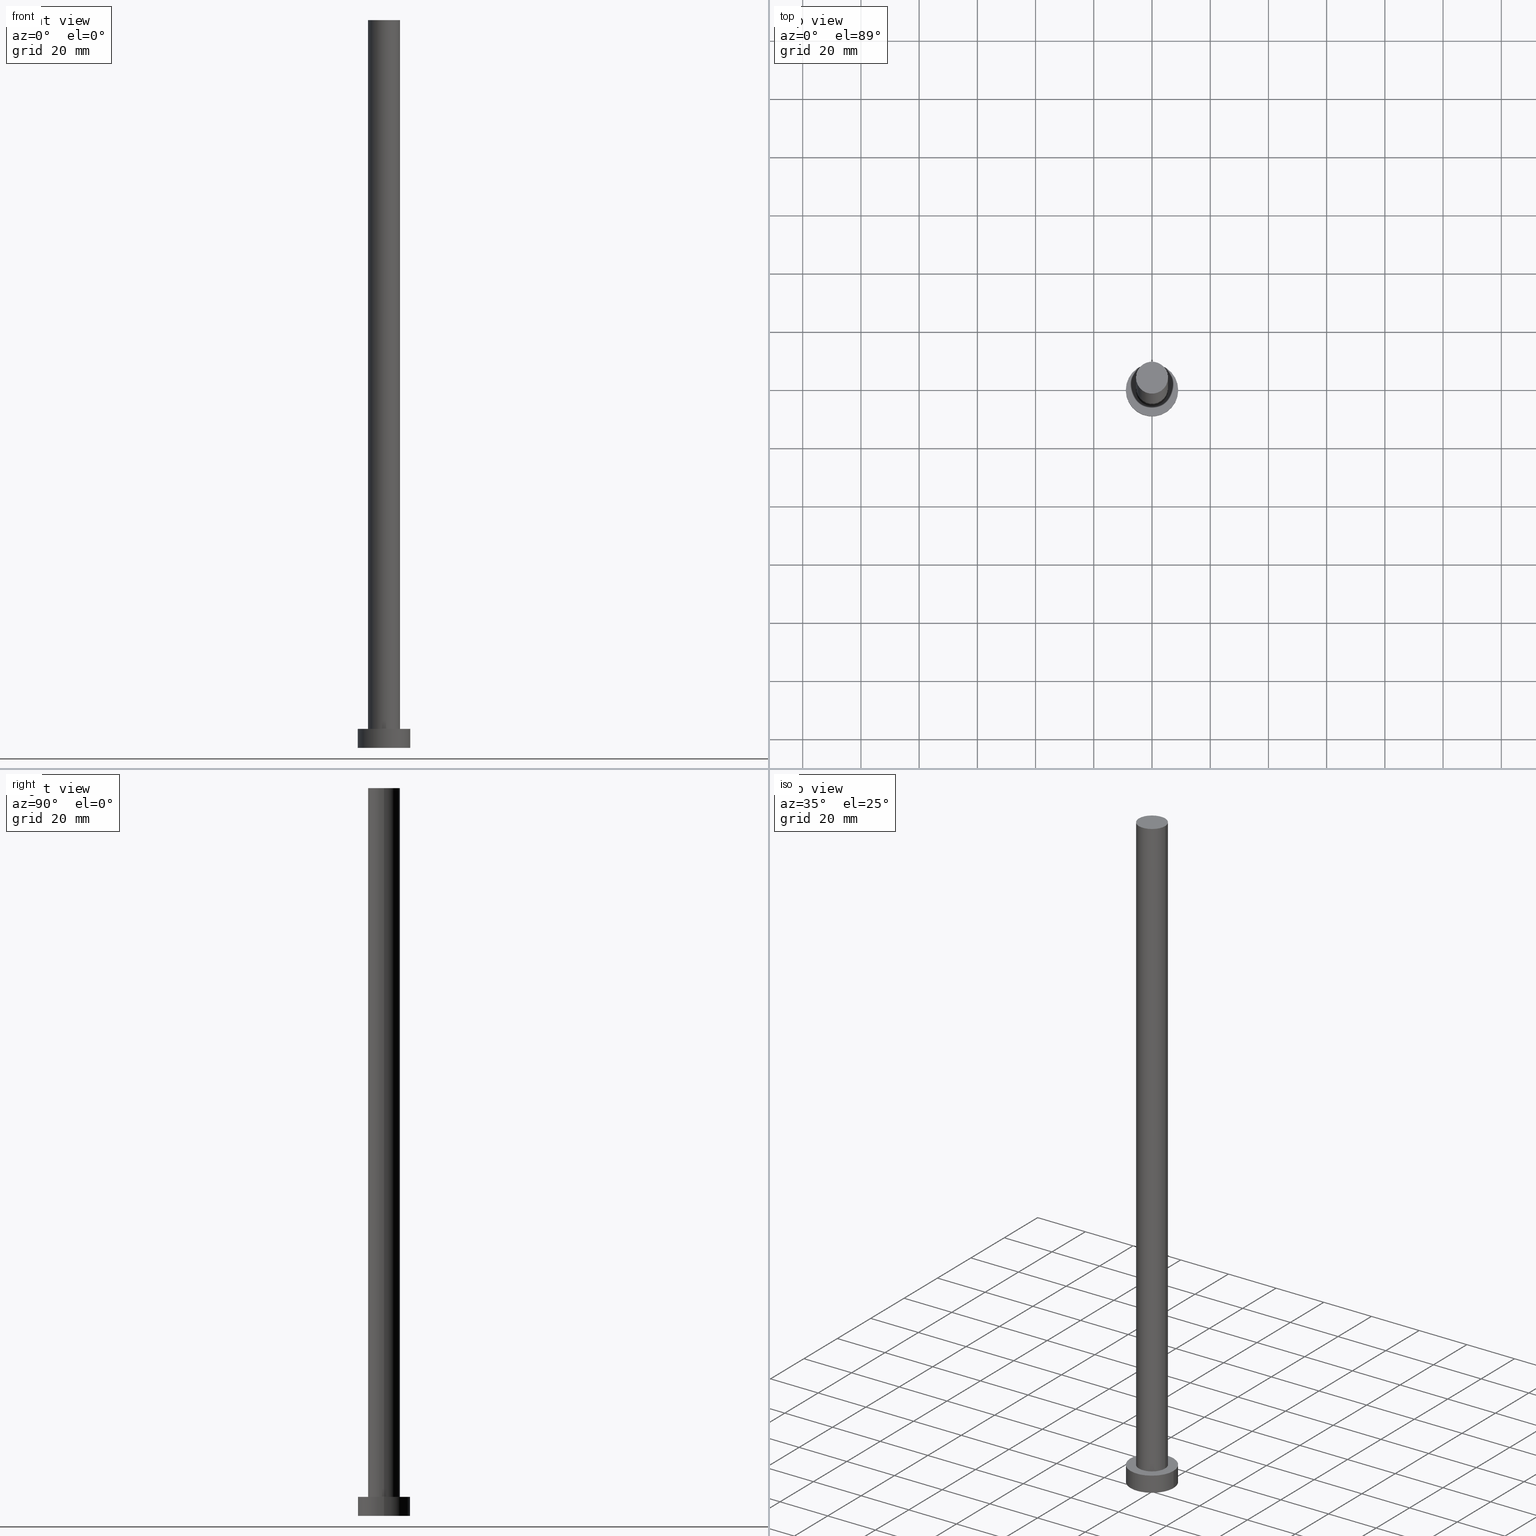
[diagram: canonical four-view strip — front | top / right | iso, engineering-drawing reading convention]
A machine part, canonical four-view strip (front | top / right | iso — engineering-drawing reading convention). The complete STEP part file that produces these views, byte-faithful:
ISO-10303-21;
HEADER;
FILE_DESCRIPTION (( 'STEP AP203' ),
    '1' );
FILE_NAME ('5524.STEP',
    '2023-02-13T12:19:57',
    ( '' ),
    ( '' ),
    'SwSTEP 2.0',
    'SolidWorks 2019',
    '' );
FILE_SCHEMA (( 'CONFIG_CONTROL_DESIGN' ));
ENDSEC;

DATA;
#1 = CALENDAR_DATE ( 2023, 13, 2 ) ;
#2 = ORGANIZATION ( 'NEUR�EN�', 'NEUR�EN�', '' ) ;
#3 = CARTESIAN_POINT ( 'NONE',  ( 0.000000000000000000, 0.000000000000000000, 0.000000000000000000 ) ) ;
#4 = CC_DESIGN_DATE_AND_TIME_ASSIGNMENT ( #159, #237, ( #126 ) ) ;
#5 = DATE_TIME_ROLE ( 'creation_date' ) ;
#6 = DIRECTION ( 'NONE',  ( 1.000000000000000000, 0.000000000000000000, -0.000000000000000000 ) ) ;
#7 = CARTESIAN_POINT ( 'NONE',  ( -9.000000000000000000, 0.000000000000000000, 6.500000000000000000 ) ) ;
#8 = CIRCLE ( 'NONE', #146, 5.500000000000000000 ) ;
#9 = ADVANCED_FACE ( 'NONE', ( #107 ), #130, .T. ) ;
#10 = CALENDAR_DATE ( 2023, 13, 2 ) ;
#11 = VECTOR ( 'NONE', #209, 1000.000000000000000 ) ;
#12 = EDGE_CURVE ( 'NONE', #180, #161, #230, .T. ) ;
#13 = VERTEX_POINT ( 'NONE', #87 ) ;
#14 = CC_DESIGN_SECURITY_CLASSIFICATION ( #126, ( #253 ) ) ;
#15 = PLANE ( 'NONE',  #167 ) ;
#16 = CARTESIAN_POINT ( 'NONE',  ( 0.000000000000000000, 0.000000000000000000, 6.500000000000000000 ) ) ;
#17 = ORIENTED_EDGE ( 'NONE', *, *, #152, .F. ) ;
#18 = DIRECTION ( 'NONE',  ( 1.000000000000000000, 0.000000000000000000, 0.000000000000000000 ) ) ;
#19 = EDGE_LOOP ( 'NONE', ( #96, #62 ) ) ;
#20 = PRODUCT_DEFINITION ( 'NEZN�M�', '', #253, #233 ) ;
#21 = EDGE_LOOP ( 'NONE', ( #164, #134, #36, #202 ) ) ;
#22 = LOCAL_TIME ( 13, 19, 57.00000000000000000, #184 ) ;
#23 = CC_DESIGN_PERSON_AND_ORGANIZATION_ASSIGNMENT ( #90, #175, ( #126 ) ) ;
#24 = CARTESIAN_POINT ( 'NONE',  ( 0.000000000000000000, 0.000000000000000000, 6.500000000000000000 ) ) ;
#25 = ORIENTED_EDGE ( 'NONE', *, *, #203, .T. ) ;
#26 = EDGE_CURVE ( 'NONE', #56, #215, #55, .T. ) ;
#27 = LOCAL_TIME ( 13, 19, 57.00000000000000000, #136 ) ;
#28 = CARTESIAN_POINT ( 'NONE',  ( 0.000000000000000000, 0.000000000000000000, 6.500000000000000000 ) ) ;
#29 = FACE_OUTER_BOUND ( 'NONE', #212, .T. ) ;
#30 = DIRECTION ( 'NONE',  ( -0.000000000000000000, -0.000000000000000000, -1.000000000000000000 ) ) ;
#31 = DIRECTION ( 'NONE',  ( 0.000000000000000000, 0.000000000000000000, 1.000000000000000000 ) ) ;
#32 = LOCAL_TIME ( 13, 19, 57.00000000000000000, #217 ) ;
#33 = CARTESIAN_POINT ( 'NONE',  ( 0.000000000000000000, 0.000000000000000000, 0.000000000000000000 ) ) ;
#34 = DIRECTION ( 'NONE',  ( 0.000000000000000000, 0.000000000000000000, 1.000000000000000000 ) ) ;
#35 = CARTESIAN_POINT ( 'NONE',  ( 5.500000000000000000, 6.735557395310442023E-16, 6.500000000000000000 ) ) ;
#36 = ORIENTED_EDGE ( 'NONE', *, *, #226, .T. ) ;
#37 = PERSON_AND_ORGANIZATION ( #42, #2 ) ;
#38 = AXIS2_PLACEMENT_3D ( 'NONE', #28, #34, #189 ) ;
#39 = CIRCLE ( 'NONE', #187, 9.000000000000000000 ) ;
#40 = ORIENTED_EDGE ( 'NONE', *, *, #219, .T. ) ;
#41 = ADVANCED_FACE ( 'NONE', ( #82 ), #186, .T. ) ;
#42 = PERSON ( 'NEUR�EN�', 'NEUR�EN�', 'NEUR�EN�', ('NEUR�EN�'), ('NEUR�EN�'), ('NEUR�EN�') ) ;
#43 = AXIS2_PLACEMENT_3D ( 'NONE', #70, #166, #228 ) ;
#44 = ORIENTED_EDGE ( 'NONE', *, *, #254, .T. ) ;
#45 = EDGE_CURVE ( 'NONE', #180, #13, #103, .T. ) ;
#46 = APPROVAL_DATE_TIME ( #104, #60 ) ;
#47 = DIRECTION ( 'NONE',  ( -0.000000000000000000, -0.000000000000000000, -1.000000000000000000 ) ) ;
#48 = APPLICATION_CONTEXT ( 'configuration controlled 3d designs of mechanical parts and assemblies' ) ;
#49 = APPROVAL_STATUS ( 'not_yet_approved' ) ;
#50 = CARTESIAN_POINT ( 'NONE',  ( 0.000000000000000000, 0.000000000000000000, 6.500000000000000000 ) ) ;
#51 = DIRECTION ( 'NONE',  ( 1.000000000000000000, 0.000000000000000000, 0.000000000000000000 ) ) ;
#52 =( NAMED_UNIT ( * ) PLANE_ANGLE_UNIT ( ) SI_UNIT ( $, .RADIAN. ) );
#53 = CC_DESIGN_DATE_AND_TIME_ASSIGNMENT ( #120, #5, ( #20 ) ) ;
#54 = DIRECTION ( 'NONE',  ( 0.000000000000000000, 0.000000000000000000, 1.000000000000000000 ) ) ;
#55 = CIRCLE ( 'NONE', #85, 5.500000000000000000 ) ;
#56 = VERTEX_POINT ( 'NONE', #128 ) ;
#57 = APPROVAL_ROLE ( '' ) ;
#58 = ORIENTED_EDGE ( 'NONE', *, *, #163, .F. ) ;
#59 = AXIS2_PLACEMENT_3D ( 'NONE', #246, #66, #123 ) ;
#60 = APPROVAL ( #49, 'NEUR�EN�' ) ;
#61 = CC_DESIGN_APPROVAL ( #114, ( #253 ) ) ;
#62 = ORIENTED_EDGE ( 'NONE', *, *, #226, .F. ) ;
#63 = CALENDAR_DATE ( 2023, 13, 2 ) ;
#64 = PERSON_AND_ORGANIZATION ( #42, #2 ) ;
#65 = DIRECTION ( 'NONE',  ( 1.000000000000000000, 0.000000000000000000, 0.000000000000000000 ) ) ;
#66 = DIRECTION ( 'NONE',  ( -0.000000000000000000, -0.000000000000000000, -1.000000000000000000 ) ) ;
#67 = LINE ( 'NONE', #177, #218 ) ;
#68 = CC_DESIGN_PERSON_AND_ORGANIZATION_ASSIGNMENT ( #204, #74, ( #253 ) ) ;
#69 = ORIENTED_EDGE ( 'NONE', *, *, #26, .T. ) ;
#70 = CARTESIAN_POINT ( 'NONE',  ( 0.000000000000000000, 0.000000000000000000, 6.500000000000000000 ) ) ;
#71 = CARTESIAN_POINT ( 'NONE',  ( 0.000000000000000000, 0.000000000000000000, 250.0000000000000000 ) ) ;
#72 =( NAMED_UNIT ( * ) SI_UNIT ( $, .STERADIAN. ) SOLID_ANGLE_UNIT ( ) );
#73 = DATE_AND_TIME ( #1, #129 ) ;
#74 = PERSON_AND_ORGANIZATION_ROLE ( 'creator' ) ;
#75 = DIRECTION ( 'NONE',  ( -0.000000000000000000, -0.000000000000000000, -1.000000000000000000 ) ) ;
#76 = VECTOR ( 'NONE', #224, 1000.000000000000000 ) ;
#77 = LOCAL_TIME ( 13, 19, 57.00000000000000000, #132 ) ;
#78 = EDGE_LOOP ( 'NONE', ( #222, #113, #232, #58 ) ) ;
#79 = AXIS2_PLACEMENT_3D ( 'NONE', #231, #111, #252 ) ;
#80 = DIRECTION ( 'NONE',  ( 0.000000000000000000, 0.000000000000000000, 1.000000000000000000 ) ) ;
#81 = DIRECTION ( 'NONE',  ( -1.000000000000000000, 0.000000000000000000, 0.000000000000000000 ) ) ;
#82 = FACE_OUTER_BOUND ( 'NONE', #21, .T. ) ;
#83 = ADVANCED_FACE ( 'NONE', ( #250 ), #145, .T. ) ;
#84 = DIRECTION ( 'NONE',  ( 1.000000000000000000, 0.000000000000000000, 0.000000000000000000 ) ) ;
#85 = AXIS2_PLACEMENT_3D ( 'NONE', #149, #105, #84 ) ;
#86 = DIRECTION ( 'NONE',  ( 0.000000000000000000, 0.000000000000000000, 1.000000000000000000 ) ) ;
#87 = CARTESIAN_POINT ( 'NONE',  ( 9.000000000000000000, 1.102182119232617517E-15, 0.000000000000000000 ) ) ;
#88 = PERSON_AND_ORGANIZATION ( #42, #2 ) ;
#89 = ORIENTED_EDGE ( 'NONE', *, *, #91, .T. ) ;
#90 = PERSON_AND_ORGANIZATION ( #42, #2 ) ;
#91 = EDGE_CURVE ( 'NONE', #161, #180, #109, .T. ) ;
#92 = APPLICATION_PROTOCOL_DEFINITION ( 'international standard', 'config_control_design', 1994, #48 ) ;
#93 = APPROVAL_ROLE ( '' ) ;
#94 = CC_DESIGN_PERSON_AND_ORGANIZATION_ASSIGNMENT ( #64, #98, ( #20 ) ) ;
#95 = DIRECTION ( 'NONE',  ( 0.000000000000000000, 0.000000000000000000, 1.000000000000000000 ) ) ;
#96 = ORIENTED_EDGE ( 'NONE', *, *, #203, .F. ) ;
#97 = EDGE_LOOP ( 'NONE', ( #116, #191, #154, #40 ) ) ;
#98 = PERSON_AND_ORGANIZATION_ROLE ( 'creator' ) ;
#99 = ORIENTED_EDGE ( 'NONE', *, *, #131, .T. ) ;
#100 = AXIS2_PLACEMENT_3D ( 'NONE', #50, #30, #206 ) ;
#101 = PRODUCT ( '5524', '5524', '', ( #174 ) ) ;
#102 = ADVANCED_FACE ( 'NONE', ( #247 ), #171, .T. ) ;
#103 = LINE ( 'NONE', #169, #11 ) ;
#104 = DATE_AND_TIME ( #63, #32 ) ;
#105 = DIRECTION ( 'NONE',  ( 0.000000000000000000, 0.000000000000000000, 1.000000000000000000 ) ) ;
#106 = AXIS2_PLACEMENT_3D ( 'NONE', #33, #108, #150 ) ;
#107 = FACE_OUTER_BOUND ( 'NONE', #97, .T. ) ;
#108 = DIRECTION ( 'NONE',  ( 0.000000000000000000, 0.000000000000000000, 1.000000000000000000 ) ) ;
#109 = CIRCLE ( 'NONE', #179, 9.000000000000000000 ) ;
#110 =( LENGTH_UNIT ( ) NAMED_UNIT ( * ) SI_UNIT ( .MILLI., .METRE. ) );
#111 = DIRECTION ( 'NONE',  ( 0.000000000000000000, 0.000000000000000000, 1.000000000000000000 ) ) ;
#112 = ORIENTED_EDGE ( 'NONE', *, *, #12, .T. ) ;
#113 = ORIENTED_EDGE ( 'NONE', *, *, #122, .T. ) ;
#114 = APPROVAL ( #205, 'NEUR�EN�' ) ;
#115 = PERSON_AND_ORGANIZATION ( #42, #2 ) ;
#116 = ORIENTED_EDGE ( 'NONE', *, *, #122, .F. ) ;
#117 = LINE ( 'NONE', #239, #248 ) ;
#118 = EDGE_LOOP ( 'NONE', ( #44, #69 ) ) ;
#119 = APPROVAL ( #193, 'NEUR�EN�' ) ;
#120 = DATE_AND_TIME ( #176, #22 ) ;
#121 = CARTESIAN_POINT ( 'NONE',  ( -5.500000000000000000, 0.000000000000000000, 250.0000000000000000 ) ) ;
#122 = EDGE_CURVE ( 'NONE', #56, #236, #251, .T. ) ;
#123 = DIRECTION ( 'NONE',  ( -1.000000000000000000, 0.000000000000000000, 0.000000000000000000 ) ) ;
#124 = CIRCLE ( 'NONE', #137, 5.500000000000000000 ) ;
#125 = CARTESIAN_POINT ( 'NONE',  ( -5.500000000000000000, 0.000000000000000000, 6.500000000000000000 ) ) ;
#126 = SECURITY_CLASSIFICATION ( '', '', #172 ) ;
#127 = DIRECTION ( 'NONE',  ( 1.000000000000000000, 0.000000000000000000, 0.000000000000000000 ) ) ;
#128 = CARTESIAN_POINT ( 'NONE',  ( 5.500000000000000000, 6.735557395310442023E-16, 250.0000000000000000 ) ) ;
#129 = LOCAL_TIME ( 13, 19, 57.00000000000000000, #135 ) ;
#130 = CYLINDRICAL_SURFACE ( 'NONE', #243, 5.500000000000000000 ) ;
#131 = EDGE_CURVE ( 'NONE', #161, #173, #67, .T. ) ;
#132 = COORDINATED_UNIVERSAL_TIME_OFFSET ( 1, 0, .AHEAD. ) ;
#133 = ORIENTED_EDGE ( 'NONE', *, *, #219, .F. ) ;
#134 = ORIENTED_EDGE ( 'NONE', *, *, #45, .T. ) ;
#135 = COORDINATED_UNIVERSAL_TIME_OFFSET ( 1, 0, .AHEAD. ) ;
#136 = COORDINATED_UNIVERSAL_TIME_OFFSET ( 1, 0, .AHEAD. ) ;
#137 = AXIS2_PLACEMENT_3D ( 'NONE', #24, #139, #158 ) ;
#138 = APPLICATION_CONTEXT ( 'configuration controlled 3d designs of mechanical parts and assemblies' ) ;
#139 = DIRECTION ( 'NONE',  ( 0.000000000000000000, 0.000000000000000000, 1.000000000000000000 ) ) ;
#140 = ORIENTED_EDGE ( 'NONE', *, *, #91, .F. ) ;
#141 = CLOSED_SHELL ( 'NONE', ( #102, #41, #83, #210, #148, #9, #238 ) ) ;
#142 = APPROVAL_PERSON_ORGANIZATION ( #225, #60, #57 ) ;
#143 = CARTESIAN_POINT ( 'NONE',  ( 0.000000000000000000, 0.000000000000000000, 0.000000000000000000 ) ) ;
#144 = CARTESIAN_POINT ( 'NONE',  ( 5.500000000000000000, 6.735557395310442023E-16, 250.0000000000000000 ) ) ;
#145 = CYLINDRICAL_SURFACE ( 'NONE', #43, 9.000000000000000000 ) ;
#146 = AXIS2_PLACEMENT_3D ( 'NONE', #16, #80, #65 ) ;
#147 = ADVANCED_BREP_SHAPE_REPRESENTATION ( '5524', ( #208, #106 ), #234 ) ;
#148 = ADVANCED_FACE ( 'NONE', ( #162 ), #244, .F. ) ;
#149 = CARTESIAN_POINT ( 'NONE',  ( 0.000000000000000000, 0.000000000000000000, 250.0000000000000000 ) ) ;
#150 = DIRECTION ( 'NONE',  ( 1.000000000000000000, 0.000000000000000000, 0.000000000000000000 ) ) ;
#151 = CC_DESIGN_APPROVAL ( #60, ( #20 ) ) ;
#152 = EDGE_CURVE ( 'NONE', #236, #199, #124, .T. ) ;
#153 = CC_DESIGN_APPROVAL ( #119, ( #126 ) ) ;
#154 = ORIENTED_EDGE ( 'NONE', *, *, #163, .T. ) ;
#155 = APPROVAL_DATE_TIME ( #73, #119 ) ;
#156 = PERSON_AND_ORGANIZATION ( #42, #2 ) ;
#157 = DATE_AND_TIME ( #10, #27 ) ;
#158 = DIRECTION ( 'NONE',  ( 1.000000000000000000, 0.000000000000000000, 0.000000000000000000 ) ) ;
#159 = DATE_AND_TIME ( #195, #77 ) ;
#160 = EDGE_LOOP ( 'NONE', ( #235, #140, #99, #25 ) ) ;
#161 = VERTEX_POINT ( 'NONE', #7 ) ;
#162 = FACE_OUTER_BOUND ( 'NONE', #19, .T. ) ;
#163 = EDGE_CURVE ( 'NONE', #215, #199, #117, .T. ) ;
#164 = ORIENTED_EDGE ( 'NONE', *, *, #12, .F. ) ;
#165 = FACE_BOUND ( 'NONE', #242, .T. ) ;
#166 = DIRECTION ( 'NONE',  ( -0.000000000000000000, -0.000000000000000000, -1.000000000000000000 ) ) ;
#167 = AXIS2_PLACEMENT_3D ( 'NONE', #249, #86, #227 ) ;
#168 = CC_DESIGN_PERSON_AND_ORGANIZATION_ASSIGNMENT ( #88, #255, ( #253 ) ) ;
#169 = CARTESIAN_POINT ( 'NONE',  ( 9.000000000000000000, 1.102182119232617517E-15, 6.500000000000000000 ) ) ;
#170 = DIRECTION ( 'NONE',  ( 0.000000000000000000, 0.000000000000000000, 1.000000000000000000 ) ) ;
#171 = CYLINDRICAL_SURFACE ( 'NONE', #59, 5.500000000000000000 ) ;
#172 = SECURITY_CLASSIFICATION_LEVEL ( 'unclassified' ) ;
#173 = VERTEX_POINT ( 'NONE', #200 ) ;
#174 = MECHANICAL_CONTEXT ( 'NONE', #48, 'mechanical' ) ;
#175 = PERSON_AND_ORGANIZATION_ROLE ( 'classification_officer' ) ;
#176 = CALENDAR_DATE ( 2023, 13, 2 ) ;
#177 = CARTESIAN_POINT ( 'NONE',  ( -9.000000000000000000, 0.000000000000000000, 6.500000000000000000 ) ) ;
#178 = PRODUCT_DEFINITION_SHAPE ( 'NONE', 'NONE',  #20 ) ;
#179 = AXIS2_PLACEMENT_3D ( 'NONE', #229, #31, #51 ) ;
#180 = VERTEX_POINT ( 'NONE', #182 ) ;
#181 = APPROVAL_ROLE ( '' ) ;
#182 = CARTESIAN_POINT ( 'NONE',  ( 9.000000000000000000, 1.102182119232617517E-15, 6.500000000000000000 ) ) ;
#183 = APPROVAL_PERSON_ORGANIZATION ( #115, #114, #181 ) ;
#184 = COORDINATED_UNIVERSAL_TIME_OFFSET ( 1, 0, .AHEAD. ) ;
#185 = CARTESIAN_POINT ( 'NONE',  ( 0.000000000000000000, 0.000000000000000000, 0.000000000000000000 ) ) ;
#186 = CYLINDRICAL_SURFACE ( 'NONE', #100, 9.000000000000000000 ) ;
#187 = AXIS2_PLACEMENT_3D ( 'NONE', #185, #170, #127 ) ;
#188 = FACE_OUTER_BOUND ( 'NONE', #118, .T. ) ;
#189 = DIRECTION ( 'NONE',  ( 1.000000000000000000, 0.000000000000000000, 0.000000000000000000 ) ) ;
#190 = DIRECTION ( 'NONE',  ( 0.000000000000000000, 0.000000000000000000, 1.000000000000000000 ) ) ;
#191 = ORIENTED_EDGE ( 'NONE', *, *, #254, .F. ) ;
#192 = PLANE ( 'NONE',  #79 ) ;
#193 = APPROVAL_STATUS ( 'not_yet_approved' ) ;
#194 = DIRECTION ( 'NONE',  ( 1.000000000000000000, 0.000000000000000000, 0.000000000000000000 ) ) ;
#195 = CALENDAR_DATE ( 2023, 13, 2 ) ;
#196 = AXIS2_PLACEMENT_3D ( 'NONE', #3, #190, #194 ) ;
#197 = PRODUCT_RELATED_PRODUCT_CATEGORY ( 'detail', '', ( #101 ) ) ;
#198 = DIRECTION ( 'NONE',  ( -0.000000000000000000, -0.000000000000000000, -1.000000000000000000 ) ) ;
#199 = VERTEX_POINT ( 'NONE', #125 ) ;
#200 = CARTESIAN_POINT ( 'NONE',  ( -9.000000000000000000, 0.000000000000000000, 0.000000000000000000 ) ) ;
#201 = CIRCLE ( 'NONE', #223, 5.500000000000000000 ) ;
#202 = ORIENTED_EDGE ( 'NONE', *, *, #131, .F. ) ;
#203 = EDGE_CURVE ( 'NONE', #173, #13, #39, .T. ) ;
#204 = PERSON_AND_ORGANIZATION ( #42, #2 ) ;
#205 = APPROVAL_STATUS ( 'not_yet_approved' ) ;
#206 = DIRECTION ( 'NONE',  ( -1.000000000000000000, 0.000000000000000000, 0.000000000000000000 ) ) ;
#207 = UNCERTAINTY_MEASURE_WITH_UNIT (LENGTH_MEASURE( 1.000000000000000082E-05 ), #110, 'distance_accuracy_value', 'NONE');
#208 = MANIFOLD_SOLID_BREP ( 'P�idat vysunut�m3', #141 ) ;
#209 = DIRECTION ( 'NONE',  ( -0.000000000000000000, -0.000000000000000000, -1.000000000000000000 ) ) ;
#210 = ADVANCED_FACE ( 'NONE', ( #165, #29 ), #15, .T. ) ;
#211 = APPLICATION_PROTOCOL_DEFINITION ( 'international standard', 'config_control_design', 1994, #138 ) ;
#212 = EDGE_LOOP ( 'NONE', ( #89, #112 ) ) ;
#213 = CARTESIAN_POINT ( 'NONE',  ( 0.000000000000000000, 0.000000000000000000, 250.0000000000000000 ) ) ;
#214 = CC_DESIGN_PERSON_AND_ORGANIZATION_ASSIGNMENT ( #156, #216, ( #101 ) ) ;
#215 = VERTEX_POINT ( 'NONE', #121 ) ;
#216 = PERSON_AND_ORGANIZATION_ROLE ( 'design_owner' ) ;
#217 = COORDINATED_UNIVERSAL_TIME_OFFSET ( 1, 0, .AHEAD. ) ;
#218 = VECTOR ( 'NONE', #198, 1000.000000000000000 ) ;
#219 = EDGE_CURVE ( 'NONE', #199, #236, #8, .T. ) ;
#220 = APPROVAL_DATE_TIME ( #157, #114 ) ;
#221 = APPROVAL_PERSON_ORGANIZATION ( #37, #119, #93 ) ;
#222 = ORIENTED_EDGE ( 'NONE', *, *, #26, .F. ) ;
#223 = AXIS2_PLACEMENT_3D ( 'NONE', #213, #54, #18 ) ;
#224 = DIRECTION ( 'NONE',  ( -0.000000000000000000, -0.000000000000000000, -1.000000000000000000 ) ) ;
#225 = PERSON_AND_ORGANIZATION ( #42, #2 ) ;
#226 = EDGE_CURVE ( 'NONE', #13, #173, #245, .T. ) ;
#227 = DIRECTION ( 'NONE',  ( 1.000000000000000000, 0.000000000000000000, -0.000000000000000000 ) ) ;
#228 = DIRECTION ( 'NONE',  ( -1.000000000000000000, 0.000000000000000000, 0.000000000000000000 ) ) ;
#229 = CARTESIAN_POINT ( 'NONE',  ( 0.000000000000000000, 0.000000000000000000, 6.500000000000000000 ) ) ;
#230 = CIRCLE ( 'NONE', #38, 9.000000000000000000 ) ;
#231 = CARTESIAN_POINT ( 'NONE',  ( 0.000000000000000000, 0.000000000000000000, 250.0000000000000000 ) ) ;
#232 = ORIENTED_EDGE ( 'NONE', *, *, #152, .T. ) ;
#233 = DESIGN_CONTEXT ( 'detailed design', #138, 'design' ) ;
#234 =( GEOMETRIC_REPRESENTATION_CONTEXT ( 3 ) GLOBAL_UNCERTAINTY_ASSIGNED_CONTEXT ( ( #207 ) ) GLOBAL_UNIT_ASSIGNED_CONTEXT ( ( #110, #52, #72 ) ) REPRESENTATION_CONTEXT ( 'NONE', 'WORKASPACE' ) );
#235 = ORIENTED_EDGE ( 'NONE', *, *, #45, .F. ) ;
#236 = VERTEX_POINT ( 'NONE', #35 ) ;
#237 = DATE_TIME_ROLE ( 'classification_date' ) ;
#238 = ADVANCED_FACE ( 'NONE', ( #188 ), #192, .T. ) ;
#239 = CARTESIAN_POINT ( 'NONE',  ( -5.500000000000000000, 0.000000000000000000, 250.0000000000000000 ) ) ;
#240 = SHAPE_DEFINITION_REPRESENTATION ( #178, #147 ) ;
#241 = AXIS2_PLACEMENT_3D ( 'NONE', #143, #95, #6 ) ;
#242 = EDGE_LOOP ( 'NONE', ( #133, #17 ) ) ;
#243 = AXIS2_PLACEMENT_3D ( 'NONE', #71, #47, #81 ) ;
#244 = PLANE ( 'NONE',  #241 ) ;
#245 = CIRCLE ( 'NONE', #196, 9.000000000000000000 ) ;
#246 = CARTESIAN_POINT ( 'NONE',  ( 0.000000000000000000, 0.000000000000000000, 250.0000000000000000 ) ) ;
#247 = FACE_OUTER_BOUND ( 'NONE', #78, .T. ) ;
#248 = VECTOR ( 'NONE', #75, 1000.000000000000000 ) ;
#249 = CARTESIAN_POINT ( 'NONE',  ( 0.000000000000000000, 0.000000000000000000, 6.500000000000000000 ) ) ;
#250 = FACE_OUTER_BOUND ( 'NONE', #160, .T. ) ;
#251 = LINE ( 'NONE', #144, #76 ) ;
#252 = DIRECTION ( 'NONE',  ( 1.000000000000000000, 0.000000000000000000, -0.000000000000000000 ) ) ;
#253 = PRODUCT_DEFINITION_FORMATION_WITH_SPECIFIED_SOURCE ( 'LIBOVOLN�', '', #101, .NOT_KNOWN. ) ;
#254 = EDGE_CURVE ( 'NONE', #215, #56, #201, .T. ) ;
#255 = PERSON_AND_ORGANIZATION_ROLE ( 'design_supplier' ) ;
ENDSEC;
END-ISO-10303-21;
